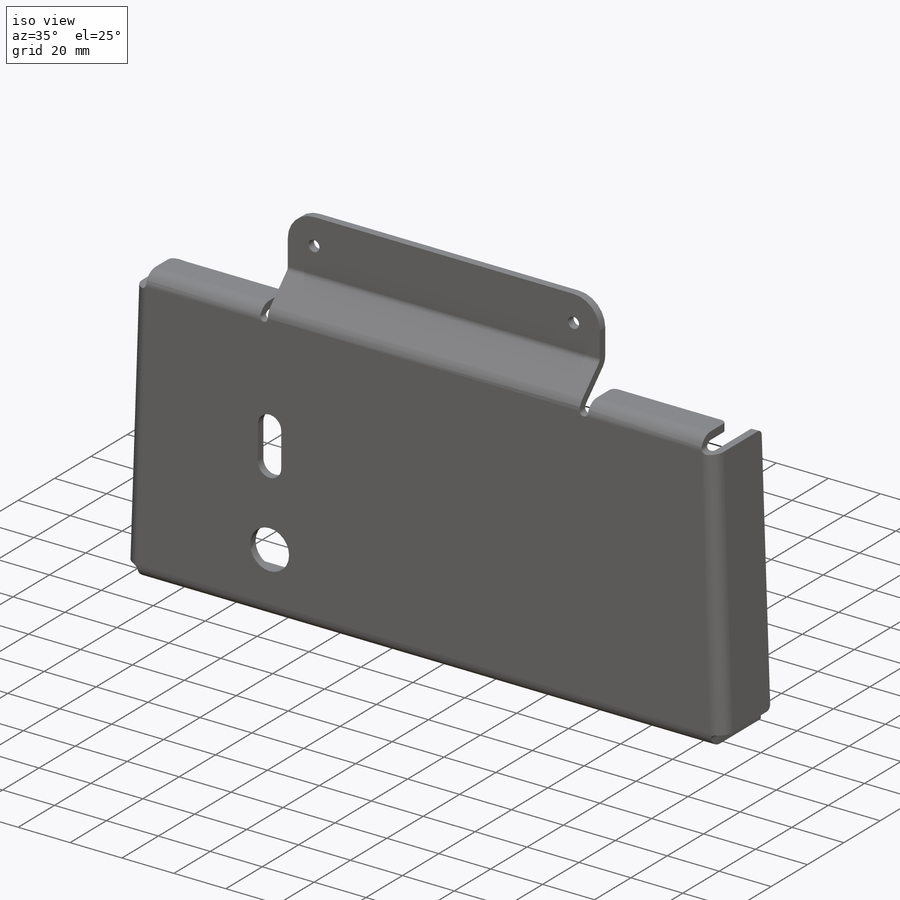
[diagram: iso view]
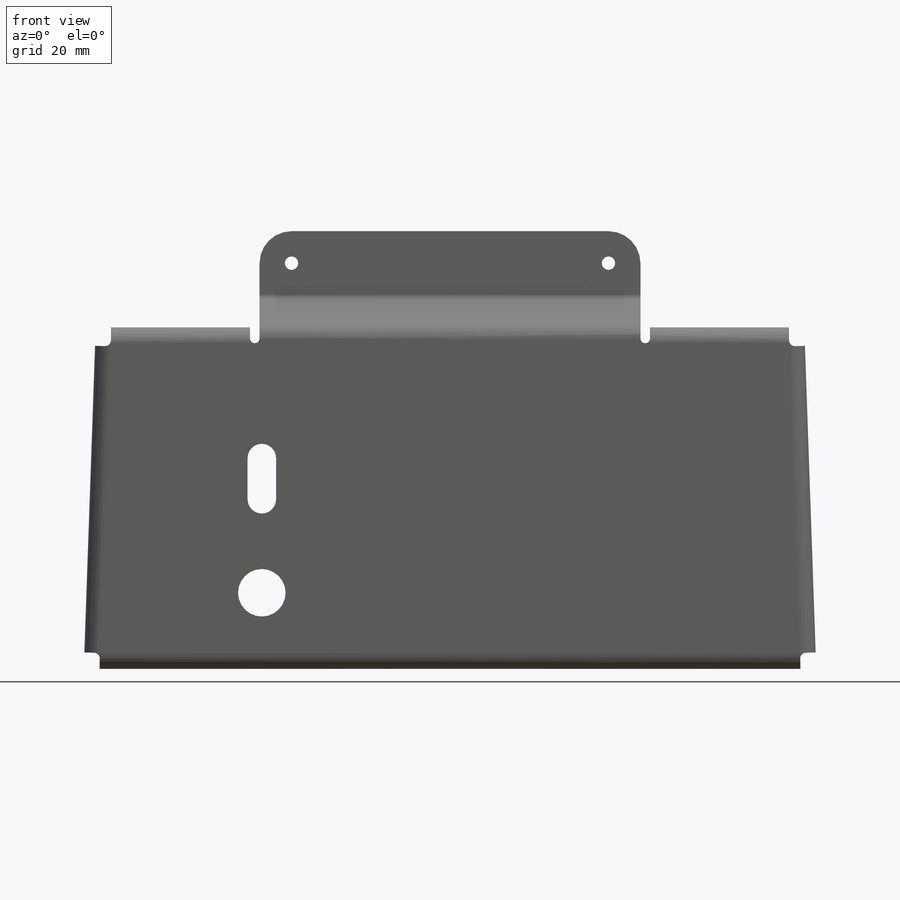
[diagram: front view]
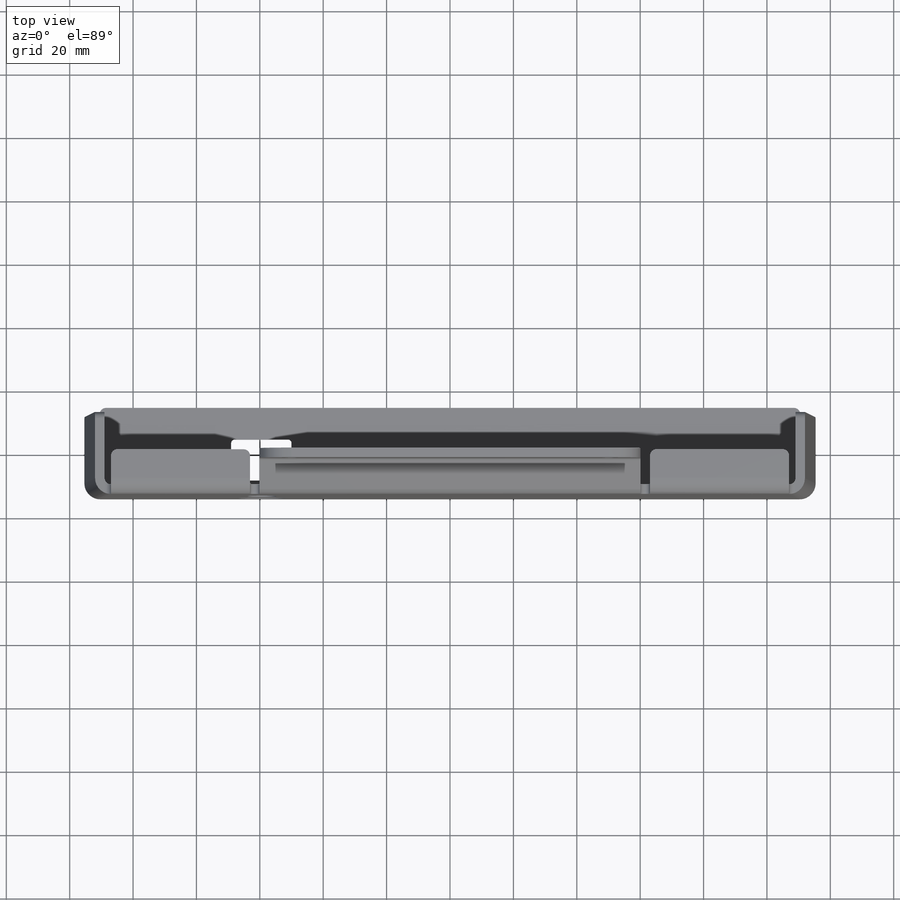
[diagram: top view]
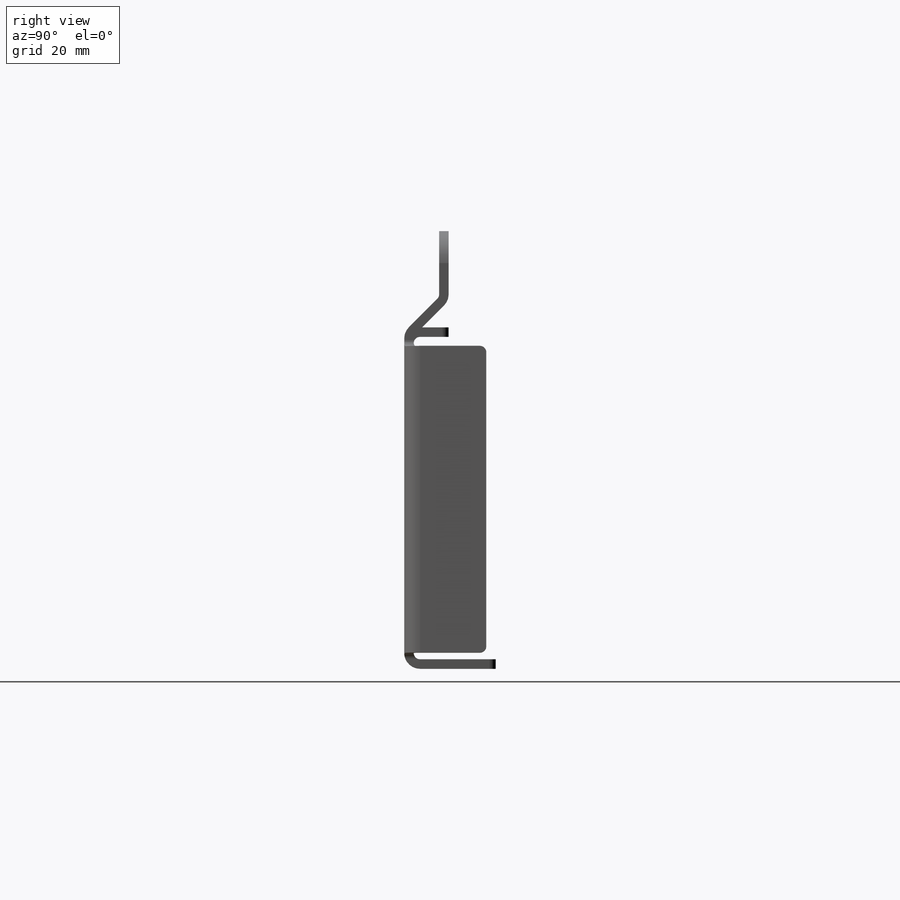
[diagram: right view]
SOLIDWORKS PART (.sldprt)
format: sldprt  version: not decoded by parser v0  size: 1,814,016 bytes
history: native  units: mm
features: sketch x41, sheet_metal_op x20, fillet x13, extrude x4, plane x3, hole x3, mirror x2, material x1, cut_extrude x1 + 57 further entries (+13 scaffold rows collapsed; 13 parser-record rows omitted)
feature tree (171):
  scaffold x13  (default folders/planes/origin — collapsed)
  material  "Material <not specified>"
  plane  "Acrylic Thickness Plane"  Offset=3mm
  plane  "Interior Lower Plane"
  plane  "Interior Upper Plane"  Offset=25mm
  sketch  "Case - Right Plane"  dims[c1.D1=~29.150168mm c2.D1=~48.487091deg c3.D1=~785.398163mm]
  sketch  "Case - Front Plane"  dims[D1=4.2mm D2=1.0mm]
  sketch  "Sketch2"  dims[c1.D1=5.0mm c1.D2=4.2mm c2.D1=6.0mm c2.D2=1.0mm c3.D1=2.0mm c3.D2=0.5 c3.D3=0.0deg c3.D6=~14.323945deg]
  sheet_metal_op  "Back Plate"
  sketch  "Sketch58"  dims[c1.D1=2.0mm c1.D4=~1570.796327mm c1.D5=1.0 c1.D8=~0.085944deg c1.D9=~0.085944deg c2.D1=2.0mm c2.D2=~28.64789deg c2.D3=0.0deg c2.D6=10.0mm c2.D7=~28.890691mm c2.Upper-Left Flange=0.0]
  sheet_metal_op  "EdgeBend23"
  sketch  "Sketch100"  dims[c1.D1=3.0mm c2.D1=2.0mm c2.D2=~28.64789deg c2.D3=0.0deg c2.D6=1.0mm c2.D7=~13.99698mm]
  mirror  "Upper-Right Flange"
  sheet_metal_op  "MirrorBend2"
  sketch  "Sketch103"  dims[D1=1.5mm]
  cut_extrude  "Flange Trim"  Depth=0 Upper Mounting Bend=0
  sheet_metal_op  "EdgeBend25"
  sketch  "Sketch105"  dims[D1=2.0mm D2=~28.64789deg D3=0.0deg D6=10.0mm D7=~7.756606mm Lower Mounting Bend=0.0]
  sheet_metal_op  "EdgeBend26"
  sketch  "Sketch109"  dims[D1=2.0mm D2=~28.64789deg D3=0.0deg D6=7.0mm D7=30.0mm]
  sketch  "Sketch98"  dims[Left Flange=0.0]
  sheet_metal_op  "EdgeBend24"
  sketch  "Sketch102"  dims[c1.D1=1.0mm c2.D1=2.0mm c2.D2=~28.64789deg c2.D3=0.0deg c2.D6=10.0mm c2.D7=~25.89698mm]
  mirror  "Right Flange"
  sheet_metal_op  "MirrorBend4"
  sketch  "Sketch111"  dims[D5=1.0mm D1=51.0mm D2=16.5mm D3=19.0mm D4=13.0mm]
  hole  "Charge Port Hole"  [1 undecoded]
  sketch  "Sketch110"  dims[c1.D2=15.0mm c1.D1=18.0mm c1.D3=51.0mm c2.D1=104.0mm]
  hole  "Battery Check Button Hole"  [1 undecoded]
  sketch  "Sketch112"  dims[c1.D2=4.5mm c1.D1=9.0mm c2.D2=22.0mm c2.D3=36.0mm]
  hole  "Battery Status Hole"  [1 undecoded]
  fillet  "Edge Fillets"  Radius=2mm
  extrude  "Corner Fillets - Bent"  Depth=1.93mm
  extrude  "U Fillets - Bent"  Depth=1.5mm
  sketch  "Bend-Lines5"
  sketch  "Bounding-Box5"
  extrude  "Corner Fillets - Flat"  Depth=1.93mm
  extrude  "U Fillets - Flat"  Depth=1.5mm
  sheet_metal_op  "Sheet-Metal6"
  "Flat-Pattern6"
  sketch  "Bend-Lines6"
  sketch  "Bounding-Box6"
  parser-record x13  (decoder bookkeeping rows leaked as tree rows — omitted from the tree; the rows remain in map.json)
  fillet  "Sheet-Metal15"  Radius=3mm
  sheet_metal_op  "Flat-Pattern6"
  sketch  "Bend-Lines6"
  sketch  "Bounding-Box6"
  fillet  "Sheet-Metal18"  Radius=3mm
  sheet_metal_op  "Flat-Pattern6"
  sketch  "Bend-Lines6"
  sketch  "Bounding-Box6"
  "Flatten-<EdgeBend10>1"
  "Flatten-<EdgeBend23>4"
  "Flatten-<MirrorBend2>2"
  "Flatten-<EdgeBend25>1"
  fillet  "Sheet-Metal19"  Radius=3mm
  sheet_metal_op  "Flat-Pattern6"
  sketch  "Bend-Lines6"
  sketch  "Bounding-Box6"
  "Flatten-<EdgeBend10>1"
  "Flatten-<EdgeBend23>5"
  "Flatten-<MirrorBend2>3"
  "Flatten-<EdgeBend25>2"
  "Flatten-<EdgeBend26>1"
  fillet  "Sheet-Metal21"  Radius=3mm
  sheet_metal_op  "Flat-Pattern6"
  sketch  "Bend-Lines6"
  sketch  "Bounding-Box6"
  "Flatten-<EdgeBend10>1"
  "Flatten-<EdgeBend23>1"
  fillet  "Sheet-Metal25"  Radius=3mm
  sheet_metal_op  "Flat-Pattern6"
  sketch  "Bend-Lines6"
  sketch  "Bounding-Box6"
  "Flatten-<EdgeBend10>1"
  "Flatten-<EdgeBend23>2"
  "Flatten-<MirrorBend2>5"
  "Flatten-<EdgeBend24>1"
  "Flatten-<EdgeBend25>4"
  "Flatten-<EdgeBend26>3"
  fillet  "Sheet-Metal27"  Radius=3mm
  sheet_metal_op  "Flat-Pattern6"
  sketch  "Bend-Lines6"
  sketch  "Bounding-Box6"
  "Flatten-<EdgeBend10>1"
  "Flatten-<EdgeBend23>6"
  "Flatten-<MirrorBend2>4"
  "Flatten-<EdgeBend25>3"
  "Flatten-<EdgeBend26>2"
  fillet  "Sheet-Metal28"  Radius=3mm
  sheet_metal_op  "Flat-Pattern6"
  sketch  "Bend-Lines6"
  sketch  "Bounding-Box6"
  "Flatten-<EdgeBend10>1"
  "Flatten-<EdgeBend23>3"
  "Flatten-<MirrorBend2>1"
  fillet  "Sheet-Metal29"  Radius=3mm
  sheet_metal_op  "Flat-Pattern6"
  sketch  "Bend-Lines6"
  sketch  "Bounding-Box6"
  "Flatten-<EdgeBend10>1"
  "Flatten-<EdgeBend23>2"
  "Flatten-<MirrorBend2>5"
  "Flatten-<EdgeBend24>2"
  "Flatten-<MirrorBend4>1"
  "Flatten-<EdgeBend25>5"
  "Flatten-<EdgeBend26>4"
  fillet  "Sheet-Metal30"  Radius=3mm
  sheet_metal_op  "Flat-Pattern6"
  sketch  "Bend-Lines6"
  sketch  "Bounding-Box6"
  "Flatten-<EdgeBend10>1"
  "Flatten-<EdgeBend23>3"
  "Flatten-<MirrorBend2>1"
  fillet  "Sheet-Metal31"  Radius=3mm
  sheet_metal_op  "Flat-Pattern6"
  sketch  "Bend-Lines6"
  sketch  "Bounding-Box6"
  "Flatten-<EdgeBend10>1"
  "Flatten-<EdgeBend23>2"
  "Flatten-<MirrorBend2>5"
  "Flatten-<EdgeBend24>2"
  "Flatten-<MirrorBend4>1"
  "Flatten-<EdgeBend25>5"
  "Flatten-<EdgeBend26>4"
  fillet  "Sheet-Metal32"  Radius=3mm
  sheet_metal_op  "Flat-Pattern6"
  sketch  "Bend-Lines6"
  sketch  "Bounding-Box6"
  "Flatten-<EdgeBend10>1"
  "Flatten-<EdgeBend23>2"
  "Flatten-<MirrorBend2>5"
  "Flatten-<EdgeBend24>2"
  "Flatten-<MirrorBend4>1"
  "Flatten-<EdgeBend25>5"
  "Flatten-<EdgeBend26>4"
  fillet  "Sheet-Metal33"  Radius=3mm
  sheet_metal_op  "Flat-Pattern6"
  sketch  "Bend-Lines6"
  sketch  "Bounding-Box6"
  "Flatten-<EdgeBend10>1"
  "Flatten-<EdgeBend23>2"
  "Flatten-<MirrorBend2>5"
  "Flatten-<EdgeBend24>2"
  "Flatten-<MirrorBend4>1"
  "Flatten-<EdgeBend25>5"
  "Flatten-<EdgeBend26>4"
decode coverage: 31 of 84 modeling features carry decoded parameters; 57 rows unclassified (native names shown)
note: ~ marks probable driven/reference dimensions
note: 3 parameter values undecoded
summary: no parameter record found for 3 features | [note 3] (x3 features) parser:v0:name_prior (class ref resolved by constrained assignment + name prior)
note: suppression state not decoded; provenance and decode notes live in map.json
